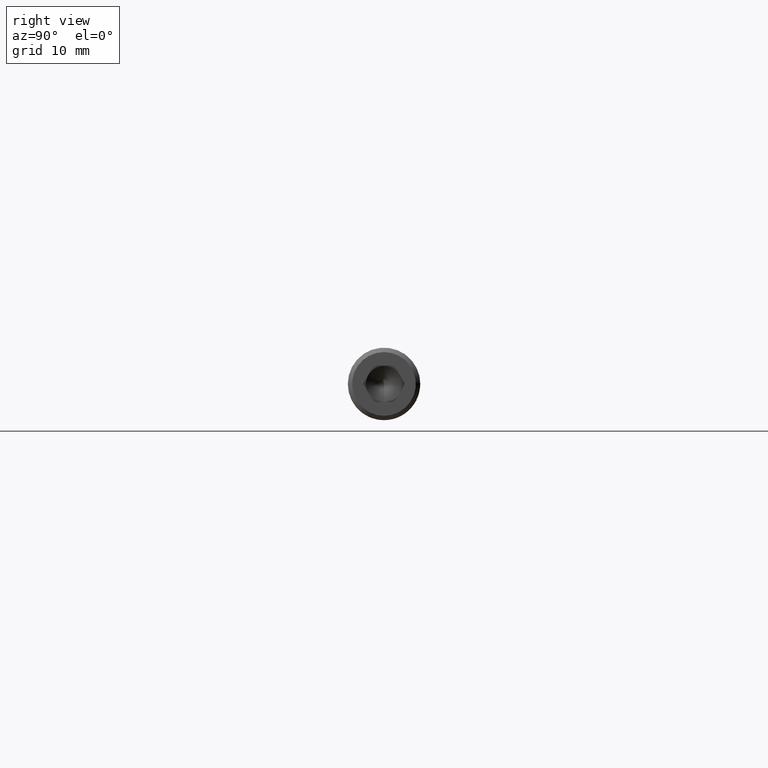
[diagram: clean part render]
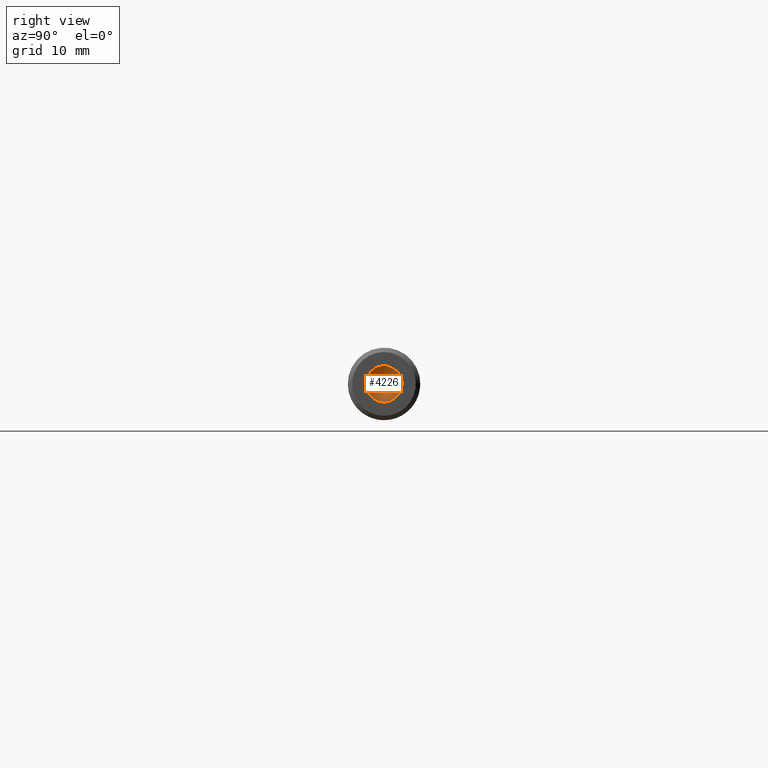
[diagram: same view with one face highlighted and labeled with its STEP entity id]
A machine part, right view. The second image highlights one B-rep face of the part: STEP entity #4226.
In plain terms, the highlighted conical surface has half-angle 59 deg.
Its self-contained STEP definition (entity closure, byte-faithful):
#16 = EDGE_CURVE ( 'NONE', #7731, #7203, #4083, .T. ) ;
#205 = CARTESIAN_POINT ( 'NONE',  ( 94.00000000000000000, 2.165063509461091900, 1.249999999999989100 ) ) ;
#507 = CARTESIAN_POINT ( 'NONE',  ( 94.00000000000000000, 0.0000000000000000000, 2.499999999999987100 ) ) ;
#594 = CIRCLE ( 'NONE', #12639, 2.499999999999993300 ) ;
#731 = DIRECTION ( 'NONE',  ( 1.000000000000000000, 0.0000000000000000000, 0.0000000000000000000 ) ) ;
#1661 = CARTESIAN_POINT ( 'NONE',  ( 94.00000000000000000, 2.165063509461091100, -1.250000000000003300 ) ) ;
#1814 = AXIS2_PLACEMENT_3D ( 'NONE', #5404, #5466, #13605 ) ;
#2001 = DIRECTION ( 'NONE',  ( 0.0000000000000000000, 0.0000000000000000000, -1.000000000000000000 ) ) ;
#2956 = DIRECTION ( 'NONE',  ( 0.0000000000000000000, 0.0000000000000000000, -1.000000000000000000 ) ) ;
#3318 = EDGE_CURVE ( 'NONE', #13741, #10144, #594, .T. ) ;
#3382 = VERTEX_POINT ( 'NONE', #16507 ) ;
#3637 = DIRECTION ( 'NONE',  ( 1.000000000000000000, 0.0000000000000000000, 0.0000000000000000000 ) ) ;
#4083 = CIRCLE ( 'NONE', #1814, 2.499999999999993300 ) ;
#4226 = ADVANCED_FACE ( 'NONE', ( #14691 ), #15326, .F. ) ;
#4273 = CARTESIAN_POINT ( 'NONE',  ( 94.00000000000000000, 0.0000000000000000000, -6.368163355566236400E-015 ) ) ;
#4397 = CIRCLE ( 'NONE', #6322, 2.499999999999993300 ) ;
#4647 = EDGE_LOOP ( 'NONE', ( #16132, #15961, #13710, #15177, #9757, #10739 ) ) ;
#4767 = EDGE_CURVE ( 'NONE', #8862, #13741, #13584, .T. ) ;
#5404 = CARTESIAN_POINT ( 'NONE',  ( 94.00000000000000000, 0.0000000000000000000, -7.454972644053516100E-015 ) ) ;
#5466 = DIRECTION ( 'NONE',  ( 1.000000000000000000, 0.0000000000000000000, 0.0000000000000000000 ) ) ;
#6023 = DIRECTION ( 'NONE',  ( 0.0000000000000000000, 0.0000000000000000000, -1.000000000000000000 ) ) ;
#6300 = CARTESIAN_POINT ( 'NONE',  ( 94.00000000000000000, 0.0000000000000000000, -7.454972644053516100E-015 ) ) ;
#6322 = AXIS2_PLACEMENT_3D ( 'NONE', #15621, #12817, #6023 ) ;
#6652 = EDGE_CURVE ( 'NONE', #7203, #3382, #12903, .T. ) ;
#6723 = DIRECTION ( 'NONE',  ( 1.000000000000000000, -0.0000000000000000000, -2.612083607381513100E-016 ) ) ;
#7125 = CARTESIAN_POINT ( 'NONE',  ( 94.00000000000000000, 0.0000000000000000000, -7.454972644053516100E-015 ) ) ;
#7203 = VERTEX_POINT ( 'NONE', #14112 ) ;
#7313 = DIRECTION ( 'NONE',  ( 1.000000000000000000, 0.0000000000000000000, 0.0000000000000000000 ) ) ;
#7524 = EDGE_CURVE ( 'NONE', #10144, #7731, #4397, .T. ) ;
#7639 = AXIS2_PLACEMENT_3D ( 'NONE', #15052, #6723, #13653 ) ;
#7731 = VERTEX_POINT ( 'NONE', #507 ) ;
#8667 = AXIS2_PLACEMENT_3D ( 'NONE', #4273, #12649, #2956 ) ;
#8862 = VERTEX_POINT ( 'NONE', #13242 ) ;
#8880 = DIRECTION ( 'NONE',  ( 0.0000000000000000000, 0.0000000000000000000, -1.000000000000000000 ) ) ;
#9757 = ORIENTED_EDGE ( 'NONE', *, *, #6652, .T. ) ;
#10144 = VERTEX_POINT ( 'NONE', #205 ) ;
#10739 = ORIENTED_EDGE ( 'NONE', *, *, #14755, .T. ) ;
#11037 = CIRCLE ( 'NONE', #13546, 2.499999999999993300 ) ;
#11929 = CARTESIAN_POINT ( 'NONE',  ( 94.00000000000000000, 0.0000000000000000000, -7.454972644053516100E-015 ) ) ;
#12639 = AXIS2_PLACEMENT_3D ( 'NONE', #11929, #3637, #17784 ) ;
#12649 = DIRECTION ( 'NONE',  ( 1.000000000000000000, -0.0000000000000000000, -2.612083607381513100E-016 ) ) ;
#12817 = DIRECTION ( 'NONE',  ( 1.000000000000000000, 0.0000000000000000000, 0.0000000000000000000 ) ) ;
#12903 = CIRCLE ( 'NONE', #15743, 2.499999999999993300 ) ;
#13242 = CARTESIAN_POINT ( 'NONE',  ( 94.00000000000000000, -3.755786496842882300E-016, -2.500000000000000000 ) ) ;
#13546 = AXIS2_PLACEMENT_3D ( 'NONE', #6300, #731, #2001 ) ;
#13584 = CIRCLE ( 'NONE', #8667, 2.499999999999993300 ) ;
#13605 = DIRECTION ( 'NONE',  ( 0.0000000000000000000, 0.0000000000000000000, -1.000000000000000000 ) ) ;
#13653 = DIRECTION ( 'NONE',  ( 0.0000000000000000000, 0.0000000000000000000, -1.000000000000000000 ) ) ;
#13710 = ORIENTED_EDGE ( 'NONE', *, *, #7524, .T. ) ;
#13741 = VERTEX_POINT ( 'NONE', #1661 ) ;
#14112 = CARTESIAN_POINT ( 'NONE',  ( 94.00000000000000000, -2.165063509461091500, 1.249999999999990000 ) ) ;
#14691 = FACE_OUTER_BOUND ( 'NONE', #4647, .T. ) ;
#14755 = EDGE_CURVE ( 'NONE', #3382, #8862, #11037, .T. ) ;
#15052 = CARTESIAN_POINT ( 'NONE',  ( 94.00000000000000000, 0.0000000000000000000, -6.368163355566236400E-015 ) ) ;
#15177 = ORIENTED_EDGE ( 'NONE', *, *, #16, .T. ) ;
#15326 = CONICAL_SURFACE ( 'NONE', #7639, 2.499999999999993300, 1.029744258676649400 ) ;
#15621 = CARTESIAN_POINT ( 'NONE',  ( 94.00000000000000000, 0.0000000000000000000, -7.454972644053516100E-015 ) ) ;
#15743 = AXIS2_PLACEMENT_3D ( 'NONE', #7125, #7313, #8880 ) ;
#15961 = ORIENTED_EDGE ( 'NONE', *, *, #3318, .T. ) ;
#16132 = ORIENTED_EDGE ( 'NONE', *, *, #4767, .T. ) ;
#16507 = CARTESIAN_POINT ( 'NONE',  ( 94.00000000000000000, -2.165063509461098200, -1.250000000000007300 ) ) ;
#17784 = DIRECTION ( 'NONE',  ( 0.0000000000000000000, 0.0000000000000000000, -1.000000000000000000 ) ) ;